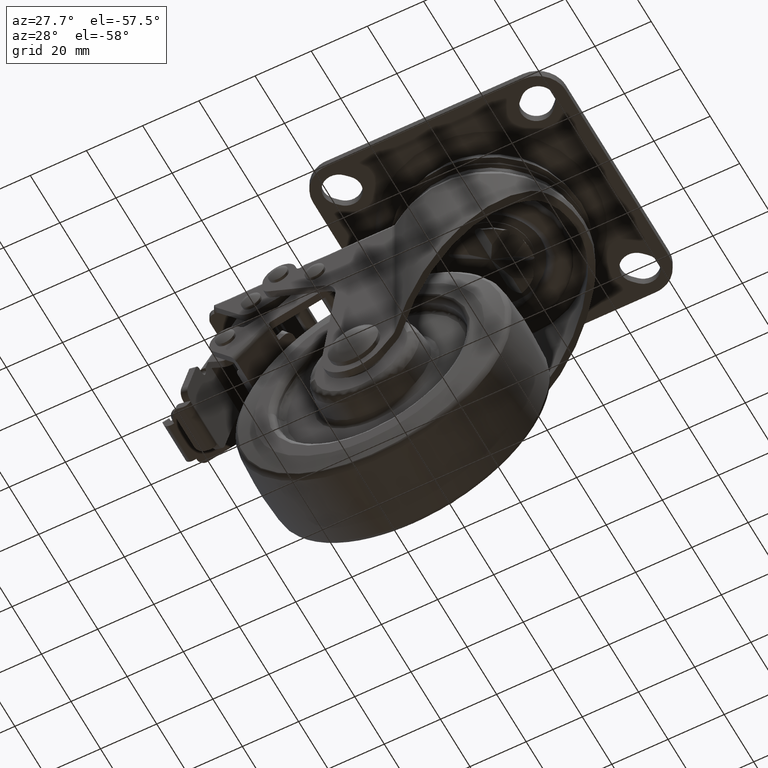
[diagram: clean part render]
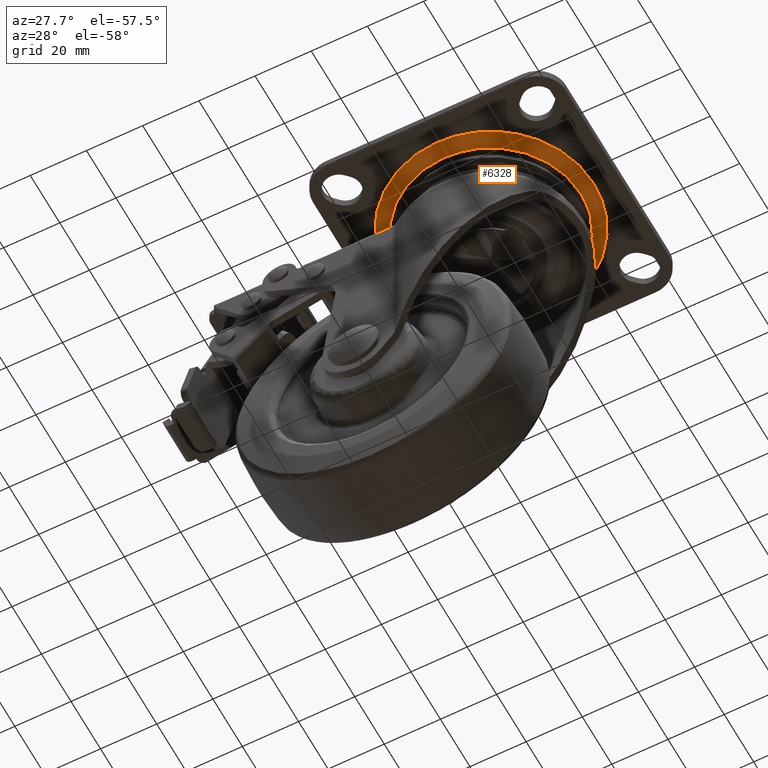
[diagram: same view with one face highlighted and labeled with its STEP entity id]
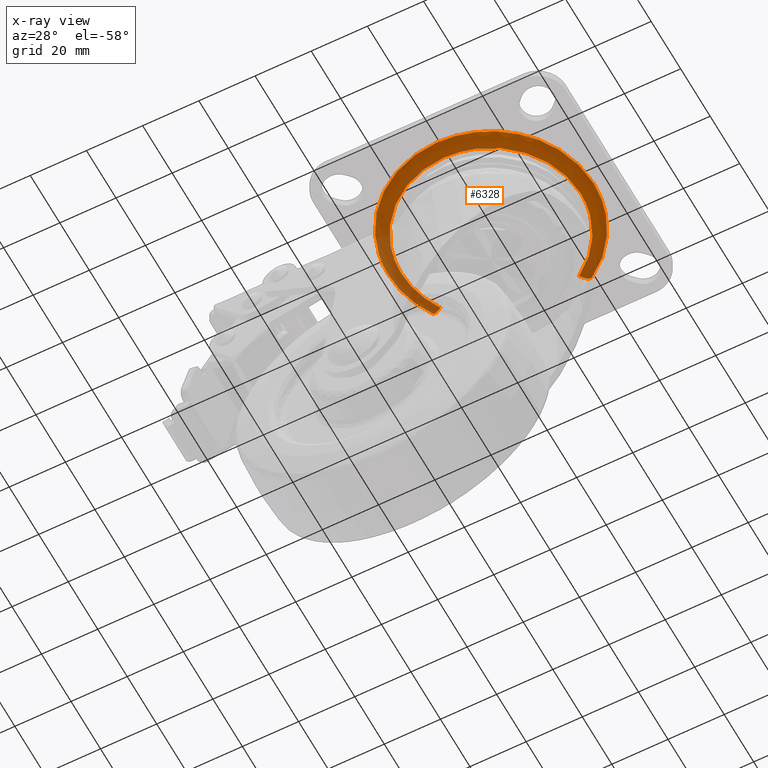
[diagram: x-ray of the same camera — body ghosted, the highlighted face saturated]
A machine part, auxiliary view. The second image highlights one B-rep face of the part: STEP entity #6328.
The next image is the same camera in x-ray: the body ghosted, the highlighted face saturated — about 19% of this face is hidden behind the body in this view.
In plain terms, the highlighted face is a freeform B-spline surface patch.
Its self-contained STEP definition (entity closure, byte-faithful):
#6144=CARTESIAN_POINT('',(19.686804016552582,31.021439298704991,-2.778445294860764));
#6145=CARTESIAN_POINT('',(50.708243315257548,11.334635282152407,-2.778445294860763));
#6146=CARTESIAN_POINT('',(31.021439298704991,-19.686804016552582,-2.778445294860764));
#6147=CARTESIAN_POINT('',(11.334635282152407,-50.708243315257548,-2.778445294860763));
#6148=CARTESIAN_POINT('',(-19.686804016552582,-31.021439298704991,-2.778445294860764));
#6149=CARTESIAN_POINT('',(-50.708243315257548,-11.334635282152432,-2.778445294860763));
#6150=CARTESIAN_POINT('',(-31.021439298704980,19.686804016552593,-2.778445294860764));
#6151=CARTESIAN_POINT('',(18.782912068832893,29.597133496442787,-5.651274293891754));
#6152=CARTESIAN_POINT('',(48.380045565275665,10.814221427609896,-5.651274293891753));
#6153=CARTESIAN_POINT('',(29.597133496442801,-18.782912068832893,-5.651274293891754));
#6154=CARTESIAN_POINT('',(10.814221427609896,-48.380045565275665,-5.651274293891753));
#6155=CARTESIAN_POINT('',(-18.782912068832893,-29.597133496442801,-5.651274293891754));
#6156=CARTESIAN_POINT('',(-48.380045565275665,-10.814221427609921,-5.651274293891753));
#6157=CARTESIAN_POINT('',(-29.597133496442773,18.782912068832903,-5.651274293891754));
#6158=CARTESIAN_POINT('',(16.999805698329109,26.787407449024968,-5.493840691651316));
#6159=CARTESIAN_POINT('',(43.787213147354066,9.787601750695870,-5.493840691651315));
#6160=CARTESIAN_POINT('',(26.787407449024979,-16.999805698329109,-5.493840691651316));
#6161=CARTESIAN_POINT('',(9.787601750695872,-43.787213147354066,-5.493840691651315));
#6162=CARTESIAN_POINT('',(-16.999805698329109,-26.787407449024979,-5.493840691651316));
#6163=CARTESIAN_POINT('',(-43.787213147354066,-9.787601750695895,-5.493840691651315));
#6164=CARTESIAN_POINT('',(-26.787407449024968,16.999805698329119,-5.493840691651316));
#6172=(BOUNDED_SURFACE()B_SPLINE_SURFACE(2,2,((#6144,#6151,#6158),(#6145,#6152,#6159),(#6146,#6153,#6160),(#6147,#6154,#6161),(#6148,#6155,#6162),(#6149,#6156,#6163),(#6150,#6157,#6164)),.UNSPECIFIED.,.F.,.F.,.U.)B_SPLINE_SURFACE_WITH_KNOTS((3,2,2,3),(3,3),(0.0,60.874456446373472,121.748912892746900,182.623369339120390),(0.0,6.145530497558513),.UNSPECIFIED.)GEOMETRIC_REPRESENTATION_ITEM()RATIONAL_B_SPLINE_SURFACE(((0.926931857667683,0.793355005802701,0.926976187857446),(0.655439802254662,0.560986704491383,0.655471148432455),(0.926931857667683,0.793355005802701,0.926976187857446),(0.655439802254662,0.560986704491383,0.655471148432455),(0.926931857667683,0.793355005802701,0.926976187857446),(0.655439802254662,0.560986704491383,0.655471148432455),(0.926931857667683,0.793355005802701,0.926976187857446)))REPRESENTATION_ITEM('')SURFACE());
#6173=CARTESIAN_POINT('',(17.139405422947799,27.007381416338738,-5.500000000000020));
#6174=VERTEX_POINT('',#6173);
#6175=CARTESIAN_POINT('',(31.986839000000050,0.0,-5.500000000000000));
#6176=VERTEX_POINT('',#6175);
#6177=CARTESIAN_POINT('',(17.139405422947799,27.007381416338738,-5.500000000000020));
#6178=CARTESIAN_POINT('',(18.553553423208371,26.110041842609800,-5.500000000000023));
#6179=CARTESIAN_POINT('',(21.374796384015241,23.991679250975370,-5.500000000000016));
#6180=CARTESIAN_POINT('',(24.623879530290349,20.585864440877199,-5.499999999999966));
#6181=CARTESIAN_POINT('',(27.159380434379688,17.037493353864349,-5.500000000000082));
#6182=CARTESIAN_POINT('',(28.776282668027662,14.096392140853769,-5.499999999999864));
#6183=CARTESIAN_POINT('',(30.214121318505779,10.700813670440970,-5.500000000000206));
#6184=CARTESIAN_POINT('',(31.561310431678070,6.196708302676100,-5.499999999999803));
#6185=CARTESIAN_POINT('',(31.987266377400459,2.344793523631718,-5.500000000000088));
#6186=CARTESIAN_POINT('',(31.986839000000050,0.0,-5.500000000000000));
#6187=B_SPLINE_CURVE_WITH_KNOTS('',3,(#6177,#6178,#6179,#6180,#6181,#6182,#6183,#6184,#6185,#6186),.UNSPECIFIED.,.F.,.U.,(4,1,1,1,1,1,1,4),(0.000000033884600,5.024477239331816,10.551448050158021,14.068612703451381,18.088147740764700,20.600421166046061,25.122472712459199,32.156760540013977),.UNSPECIFIED.);
#6188=EDGE_CURVE('',#6174,#6176,#6187,.T.);
#6189=ORIENTED_EDGE('',*,*,#6188,.F.);
#6190=CARTESIAN_POINT('',(19.613267598840640,30.905564445822069,-3.000000000365438));
#6191=VERTEX_POINT('',#6190);
#6192=CARTESIAN_POINT('',(19.613267598840640,30.905564445822069,-3.000000000365438));
#6193=CARTESIAN_POINT('',(19.471439616110398,30.682079305558290,-3.405842019718198));
#6194=CARTESIAN_POINT('',(19.160039244880998,30.191390837011610,-4.081539925103860));
#6195=CARTESIAN_POINT('',(18.660057354096750,29.403545442595760,-4.748136300093371));
#6196=CARTESIAN_POINT('',(18.009684308382941,28.378721507639181,-5.322639370420023));
#6197=CARTESIAN_POINT('',(17.505998564073408,27.585039773948079,-5.500675999379256));
#6198=CARTESIAN_POINT('',(17.139405422947799,27.007381416338738,-5.500000000000020));
#6199=B_SPLINE_CURVE_WITH_KNOTS('',3,(#6192,#6193,#6194,#6195,#6196,#6197,#6198),.UNSPECIFIED.,.F.,.U.,(4,1,1,1,4),(0.000000095350481,1.453569435011364,2.650657634833355,3.420136650384224,5.472253730465087),.UNSPECIFIED.);
#6200=EDGE_CURVE('',#6191,#6174,#6199,.T.);
#6201=ORIENTED_EDGE('',*,*,#6200,.F.);
#6202=CARTESIAN_POINT('',(36.603745431800448,0.0,-3.0));
#6203=VERTEX_POINT('',#6202);
#6204=CARTESIAN_POINT('',(19.613267598840640,30.905564445822069,-3.000000000365438));
#6205=CARTESIAN_POINT('',(20.988774944458239,30.032699994586050,-3.000000000335852));
#6206=CARTESIAN_POINT('',(23.700456921710320,28.046167005727060,-3.000000000277534));
#6207=CARTESIAN_POINT('',(26.873951360559580,24.970849951444428,-3.000000000209269));
#6208=CARTESIAN_POINT('',(29.794742308422720,21.411854042671610,-3.000000000146466));
#6209=CARTESIAN_POINT('',(32.126132390987841,17.769891993680432,-3.000000000096273));
#6210=CARTESIAN_POINT('',(34.314806327009499,13.070870470217571,-3.000000000049256));
#6211=CARTESIAN_POINT('',(36.095659914884742,7.282805402916577,-3.000000000010916));
#6212=CARTESIAN_POINT('',(36.604210187651589,2.683226572812348,-3.000000000000009));
#6213=CARTESIAN_POINT('',(36.603745431800448,0.0,-3.0));
#6214=B_SPLINE_CURVE_WITH_KNOTS('',3,(#6204,#6205,#6206,#6207,#6208,#6209,#6210,#6211,#6212,#6213),.UNSPECIFIED.,.F.,.U.,(4,1,1,1,1,1,1,4),(0.000000023365310,4.887259969790126,10.062006840932280,13.224361275587251,18.686566835472640,22.998851644716218,28.748589400794899,36.798193054131360),.UNSPECIFIED.);
#6215=EDGE_CURVE('',#6191,#6203,#6214,.T.);
#6216=ORIENTED_EDGE('',*,*,#6215,.T.);
#6217=CARTESIAN_POINT('',(-0.000001826418624,-36.603745431800398,-3.0));
#6218=VERTEX_POINT('',#6217);
#6219=CARTESIAN_POINT('',(36.603745431800448,0.0,-3.0));
#6220=CARTESIAN_POINT('',(36.603854804880683,-1.871640492594241,-2.999999999999989));
#6221=CARTESIAN_POINT('',(36.316031074664807,-5.614908406235426,-3.000000000000009));
#6222=CARTESIAN_POINT('',(35.185812965079677,-10.439991668241889,-3.000000000000015));
#6223=CARTESIAN_POINT('',(33.540428479332547,-14.866344122539470,-2.999999999999976));
#6224=CARTESIAN_POINT('',(31.593990875200589,-18.674864947737881,-3.000000000000001));
#6225=CARTESIAN_POINT('',(28.595359603427411,-23.074728770986098,-3.000000000000013));
#6226=CARTESIAN_POINT('',(24.757680602102859,-27.206007610002619,-3.000000000000003));
#6227=CARTESIAN_POINT('',(19.975897724574178,-30.844019675221389,-3.000000000000020));
#6228=CARTESIAN_POINT('',(14.894922061320210,-33.600141374367837,-2.999999999999944));
#6229=CARTESIAN_POINT('',(9.655022872381183,-35.456887687793980,-3.000000000000045));
#6230=CARTESIAN_POINT('',(4.566794458650398,-36.420262952269852,-2.999999999999929));
#6231=CARTESIAN_POINT('',(1.422434266976802,-36.603773496864868,-3.000000000000056));
#6232=CARTESIAN_POINT('',(-0.000001826418624,-36.603745431800398,-3.0));
#6233=B_SPLINE_CURVE_WITH_KNOTS('',3,(#6219,#6220,#6221,#6222,#6223,#6224,#6225,#6226,#6227,#6228,#6229,#6230,#6231,#6232),.UNSPECIFIED.,.F.,.U.,(4,1,1,1,1,1,1,1,1,1,1,4),(0.000000089275531,5.614916842403829,11.229891400026739,14.823478992247789,19.764651092740682,24.032015383993500,30.769887169381331,36.609462119760863,41.999848073470453,48.064022103824023,53.229803594235769,57.497120096759623),.UNSPECIFIED.);
#6234=EDGE_CURVE('',#6203,#6218,#6233,.T.);
#6235=ORIENTED_EDGE('',*,*,#6234,.T.);
#6236=CARTESIAN_POINT('',(-36.603745431800448,0.0,-3.0));
#6237=VERTEX_POINT('',#6236);
#6238=CARTESIAN_POINT('',(-0.000001826418624,-36.603745431800398,-3.0));
#6239=CARTESIAN_POINT('',(-1.946520967757058,-36.603861862669788,-3.000000000000013));
#6240=CARTESIAN_POINT('',(-5.315443670401034,-36.334364099817577,-2.999999999999968));
#6241=CARTESIAN_POINT('',(-10.514169116356770,-35.183734587240657,-3.000000000000028));
#6242=CARTESIAN_POINT('',(-14.949263108909481,-33.535202092815197,-3.000000000000012));
#6243=CARTESIAN_POINT('',(-19.181343763237329,-31.272975959504269,-3.000000000000001));
#6244=CARTESIAN_POINT('',(-22.260762624760481,-29.132360138029568,-2.999999999999959));
#6245=CARTESIAN_POINT('',(-25.283173346991632,-26.557381258577280,-3.000000000000001));
#6246=CARTESIAN_POINT('',(-27.826100825015441,-23.902830292190220,-2.999999999999997));
#6247=CARTESIAN_POINT('',(-30.322339056082789,-20.621898048939549,-3.000000000000002));
#6248=CARTESIAN_POINT('',(-32.697889734115073,-16.713388772697002,-3.000000000000012));
#6249=CARTESIAN_POINT('',(-34.814447147567542,-11.817567139234690,-2.999999999999963));
#6250=CARTESIAN_POINT('',(-36.274251525784472,-5.989237172907830,-3.000000000000086));
#6251=CARTESIAN_POINT('',(-36.603888319033807,-2.021386500815491,-2.999999999999871));
#6252=CARTESIAN_POINT('',(-36.603745431800448,0.0,-3.0));
#6253=B_SPLINE_CURVE_WITH_KNOTS('',3,(#6238,#6239,#6240,#6241,#6242,#6243,#6244,#6245,#6246,#6247,#6248,#6249,#6250,#6251,#6252),.UNSPECIFIED.,.F.,.U.,(4,1,1,1,1,1,1,1,1,1,1,1,4),(0.000000089255792,5.839549766919781,10.106910268658490,15.946468584108720,19.989260626838050,24.481243712237781,27.176373990164279,31.892914634531131,35.486491346746590,39.529250513206833,45.593420597478833,51.432970116970942,57.497118037957392),.UNSPECIFIED.);
#6254=EDGE_CURVE('',#6218,#6237,#6253,.T.);
#6255=ORIENTED_EDGE('',*,*,#6254,.T.);
#6256=CARTESIAN_POINT('',(-30.905564445822069,19.613267598840650,-3.000000000365440));
#6257=VERTEX_POINT('',#6256);
#6258=CARTESIAN_POINT('',(-36.603745431800448,0.0,-3.0));
#6259=CARTESIAN_POINT('',(-36.604470509324457,2.910857293552257,-2.999999999999949));
#6260=CARTESIAN_POINT('',(-36.021854525650333,7.761825932984700,-3.000000000037328));
#6261=CARTESIAN_POINT('',(-33.856973626149582,14.336057524994770,-3.000000000176145));
#6262=CARTESIAN_POINT('',(-32.003267003331260,17.883886336923648,-3.000000000295053));
#6263=CARTESIAN_POINT('',(-30.905564445822069,19.613267598840650,-3.000000000365440));
#6264=B_SPLINE_CURVE_WITH_KNOTS('',3,(#6258,#6259,#6260,#6261,#6262,#6263),.UNSPECIFIED.,.F.,.U.,(4,1,1,4),(2.782166E-009,8.732390331635253,14.553982683976800,20.698997723619598),.UNSPECIFIED.);
#6265=EDGE_CURVE('',#6237,#6257,#6264,.T.);
#6266=ORIENTED_EDGE('',*,*,#6265,.T.);
#6267=CARTESIAN_POINT('',(-27.007381416338738,17.139405422947799,-5.500000000000021));
#6268=VERTEX_POINT('',#6267);
#6269=CARTESIAN_POINT('',(-30.905564445822069,19.613267598840650,-3.000000000365440));
#6270=CARTESIAN_POINT('',(-30.655807024455889,19.454766719531790,-3.453613586743539));
#6271=CARTESIAN_POINT('',(-30.058383887063570,19.075630467734690,-4.250919131874063));
#6272=CARTESIAN_POINT('',(-29.007316379405349,18.408602744345561,-5.028544048004510));
#6273=CARTESIAN_POINT('',(-27.969941603160930,17.750264692552228,-5.422129937663786));
#6274=CARTESIAN_POINT('',(-27.320217187351439,17.337937040194092,-5.500047446955086));
#6275=CARTESIAN_POINT('',(-27.007381416338738,17.139405422947799,-5.500000000000021));
#6276=B_SPLINE_CURVE_WITH_KNOTS('',3,(#6269,#6270,#6271,#6272,#6273,#6274,#6275),.UNSPECIFIED.,.F.,.U.,(4,1,1,1,4),(0.000000095351620,1.624577316361981,3.163617083161283,4.360704133918990,5.472253730465091),.UNSPECIFIED.);
#6277=EDGE_CURVE('',#6257,#6268,#6276,.T.);
#6278=ORIENTED_EDGE('',*,*,#6277,.T.);
#6279=CARTESIAN_POINT('',(-31.986839000000050,0.0,-5.500000000000000));
#6280=VERTEX_POINT('',#6279);
#6281=CARTESIAN_POINT('',(-31.986839000000050,0.0,-5.500000000000000));
#6282=CARTESIAN_POINT('',(-31.986927540853241,1.601558538074155,-5.499999999999995));
#6283=CARTESIAN_POINT('',(-31.767036514965259,4.522013226037006,-5.500000000000023));
#6284=CARTESIAN_POINT('',(-30.912762888532871,8.489830691378900,-5.499999999999973));
#6285=CARTESIAN_POINT('',(-29.488903912306469,12.689061669309330,-5.500000000000048));
#6286=CARTESIAN_POINT('',(-28.067647846214332,15.469093342291821,-5.500000000000017));
#6287=CARTESIAN_POINT('',(-27.007381416338738,17.139405422947799,-5.500000000000021));
#6288=B_SPLINE_CURVE_WITH_KNOTS('',3,(#6281,#6282,#6283,#6284,#6285,#6286,#6287),.UNSPECIFIED.,.F.,.U.,(4,1,1,1,4),(6.699945E-009,4.804675777827180,8.761472484224660,12.152996080116750,18.088190152071149),.UNSPECIFIED.);
#6289=EDGE_CURVE('',#6280,#6268,#6288,.T.);
#6290=ORIENTED_EDGE('',*,*,#6289,.F.);
#6291=CARTESIAN_POINT('',(-0.000001952394964,-31.986838999999989,-5.500000000000000));
#6292=VERTEX_POINT('',#6291);
#6293=CARTESIAN_POINT('',(-0.000001952394964,-31.986838999999989,-5.500000000000000));
#6294=CARTESIAN_POINT('',(-1.635568000734345,-31.986911061235531,-5.500000000000004));
#6295=CARTESIAN_POINT('',(-4.972132011469047,-31.730442478007198,-5.499999999999995));
#6296=CARTESIAN_POINT('',(-9.314263080144675,-30.699205617725131,-5.500000000000004));
#6297=CARTESIAN_POINT('',(-13.536715281100649,-29.085321423613710,-5.500000000000003));
#6298=CARTESIAN_POINT('',(-17.632805832421379,-26.863603141171541,-5.500000000000011));
#6299=CARTESIAN_POINT('',(-21.515232660722909,-23.833627414436119,-5.500000000000012));
#6300=CARTESIAN_POINT('',(-24.939752151808388,-20.214554788093409,-5.499999999999954));
#6301=CARTESIAN_POINT('',(-27.950782694499619,-15.911583742920699,-5.500000000000142));
#6302=CARTESIAN_POINT('',(-30.058639163049250,-11.309476757916309,-5.499999999999892));
#6303=CARTESIAN_POINT('',(-31.594777393105691,-5.887876076474414,-5.500000000000139));
#6304=CARTESIAN_POINT('',(-31.987296267366009,-2.355261019766437,-5.499999999999871));
#6305=CARTESIAN_POINT('',(-31.986839000000050,0.0,-5.500000000000000));
#6306=B_SPLINE_CURVE_WITH_KNOTS('',3,(#6293,#6294,#6295,#6296,#6297,#6298,#6299,#6300,#6301,#6302,#6303,#6304,#6305),.UNSPECIFIED.,.F.,.U.,(4,1,1,1,1,1,1,1,1,1,4),(0.000000097369174,4.906704665999797,10.009720785236629,13.346300320936500,18.449324871883221,23.944830022664050,28.066459736330781,33.365721439069588,39.646360076601731,43.179231216502473,50.244886926100278),.UNSPECIFIED.);
#6307=EDGE_CURVE('',#6292,#6280,#6306,.T.);
#6308=ORIENTED_EDGE('',*,*,#6307,.F.);
#6309=CARTESIAN_POINT('',(31.986839000000050,0.0,-5.500000000000000));
#6310=CARTESIAN_POINT('',(31.987337218764502,-2.420689522301522,-5.499999999999990));
#6311=CARTESIAN_POINT('',(31.509162216395929,-6.607521488396197,-5.500000000000013));
#6312=CARTESIAN_POINT('',(29.707501352371679,-12.234439891495350,-5.500000000000022));
#6313=CARTESIAN_POINT('',(27.258381218656769,-17.026667174822599,-5.499999999999944));
#6314=CARTESIAN_POINT('',(24.272447694298400,-21.027006875203220,-5.500000000000015));
#6315=CARTESIAN_POINT('',(21.184724475619412,-24.058154952877540,-5.499999999999990));
#6316=CARTESIAN_POINT('',(18.344631617117649,-26.274584772137469,-5.500000000000077));
#6317=CARTESIAN_POINT('',(15.232668090360370,-28.218631469818469,-5.499999999999692));
#6318=CARTESIAN_POINT('',(12.022494660440900,-29.712876411348059,-5.500000000000106));
#6319=CARTESIAN_POINT('',(8.361468972264861,-30.947292644544529,-5.499999999999879));
#6320=CARTESIAN_POINT('',(4.514163688176938,-31.774117162612509,-5.500000000000267));
#6321=CARTESIAN_POINT('',(1.504721148405511,-31.986897515067309,-5.499999999999726));
#6322=CARTESIAN_POINT('',(-0.000001952394964,-31.986838999999989,-5.500000000000000));
#6323=B_SPLINE_CURVE_WITH_KNOTS('',3,(#6309,#6310,#6311,#6312,#6313,#6314,#6315,#6316,#6317,#6318,#6319,#6320,#6321,#6322),.UNSPECIFIED.,.F.,.U.,(4,1,1,1,1,1,1,1,1,1,1,4),(0.000000097143392,7.261946666066443,12.561222965207600,17.664226457106849,23.356026555758088,27.477658779847790,30.617942255061671,34.150820129137912,38.468744474934773,41.216513603913441,45.730718797246183,50.244889126908006),.UNSPECIFIED.);
#6324=EDGE_CURVE('',#6176,#6292,#6323,.T.);
#6325=ORIENTED_EDGE('',*,*,#6324,.F.);
#6326=EDGE_LOOP('',(#6189,#6201,#6216,#6235,#6255,#6266,#6278,#6290,#6308,#6325));
#6327=FACE_OUTER_BOUND('',#6326,.T.);
#6328=ADVANCED_FACE('',(#6327),#6172,.T.);